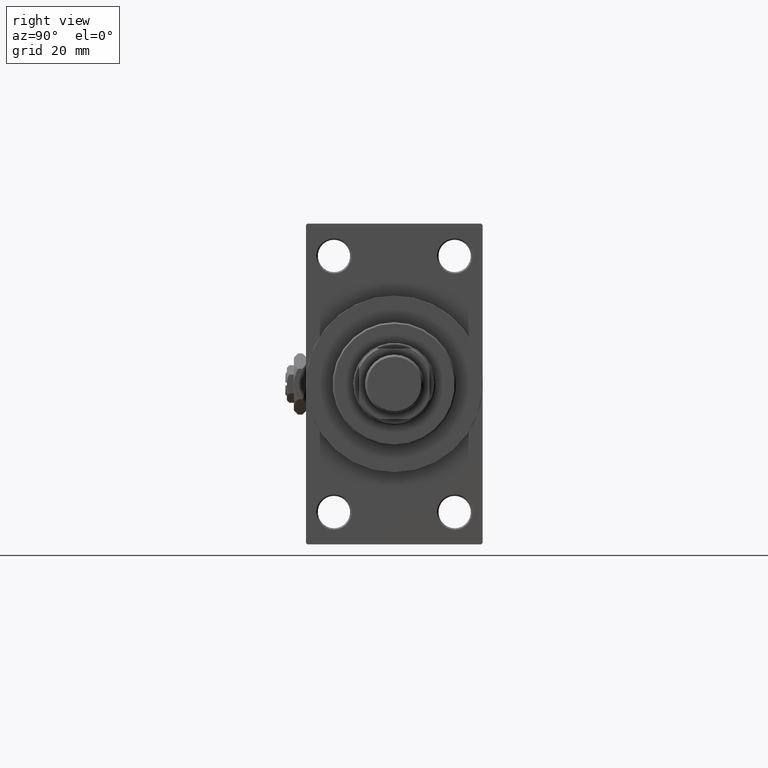
[diagram: clean part render]
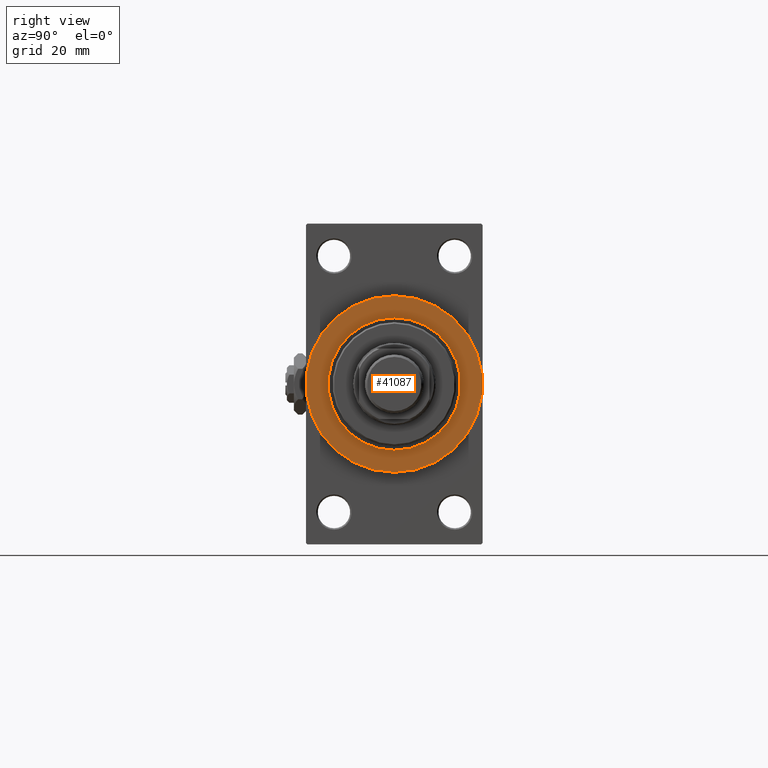
[diagram: same view with one face highlighted and labeled with its STEP entity id]
A machine part, right view. The second image highlights one B-rep face of the part: STEP entity #41087.
In plain terms, the highlighted planar face has unit normal (1, 0, 0).
Its self-contained STEP definition (entity closure, byte-faithful):
#407 = DIRECTION ( 'NONE',  ( 0.000000000000000000, 0.000000000000000000, -1.000000000000000000 ) ) ;
#518 = VERTEX_POINT ( 'NONE', #5337 ) ;
#679 = CIRCLE ( 'NONE', #49690, 30.00000000000000000 ) ;
#2275 = ORIENTED_EDGE ( 'NONE', *, *, #37459, .T. ) ;
#5337 = CARTESIAN_POINT ( 'NONE',  ( 148.0000000000000284, 3.673940397442059178E-15, -30.00000000000000000 ) ) ;
#5761 = DIRECTION ( 'NONE',  ( 1.000000000000000000, 0.000000000000000000, 0.000000000000000000 ) ) ;
#5765 = DIRECTION ( 'NONE',  ( 0.000000000000000000, 0.000000000000000000, -1.000000000000000000 ) ) ;
#7711 = DIRECTION ( 'NONE',  ( 0.000000000000000000, 0.000000000000000000, -1.000000000000000000 ) ) ;
#10197 = CIRCLE ( 'NONE', #14235, 22.50000000000000355 ) ;
#10987 = CARTESIAN_POINT ( 'NONE',  ( 148.0000000000000284, 0.000000000000000000, 0.000000000000000000 ) ) ;
#11088 = CARTESIAN_POINT ( 'NONE',  ( 148.0000000000000284, 0.000000000000000000, 0.000000000000000000 ) ) ;
#13559 = FACE_OUTER_BOUND ( 'NONE', #34023, .T. ) ;
#13746 = CARTESIAN_POINT ( 'NONE',  ( 148.0000000000000284, 0.000000000000000000, 30.00000000000000000 ) ) ;
#14235 = AXIS2_PLACEMENT_3D ( 'NONE', #16609, #5761, #39738 ) ;
#16609 = CARTESIAN_POINT ( 'NONE',  ( 148.0000000000000284, 0.000000000000000000, 0.000000000000000000 ) ) ;
#16861 = CARTESIAN_POINT ( 'NONE',  ( 148.0000000000000284, 0.000000000000000000, 0.000000000000000000 ) ) ;
#19652 = DIRECTION ( 'NONE',  ( 0.000000000000000000, 0.000000000000000000, -1.000000000000000000 ) ) ;
#20651 = VERTEX_POINT ( 'NONE', #36605 ) ;
#22295 = VERTEX_POINT ( 'NONE', #13746 ) ;
#26850 = CARTESIAN_POINT ( 'NONE',  ( 148.0000000000000284, 2.755455298081545172E-15, 22.50000000000000355 ) ) ;
#27323 = CARTESIAN_POINT ( 'NONE',  ( 148.0000000000000284, 0.000000000000000000, 0.000000000000000000 ) ) ;
#27590 = ORIENTED_EDGE ( 'NONE', *, *, #42005, .T. ) ;
#27924 = AXIS2_PLACEMENT_3D ( 'NONE', #16861, #29400, #5765 ) ;
#29400 = DIRECTION ( 'NONE',  ( 1.000000000000000000, 0.000000000000000000, 0.000000000000000000 ) ) ;
#30465 = DIRECTION ( 'NONE',  ( 1.000000000000000000, 0.000000000000000000, 0.000000000000000000 ) ) ;
#34023 = EDGE_LOOP ( 'NONE', ( #27590, #2275 ) ) ;
#34264 = CIRCLE ( 'NONE', #37452, 30.00000000000000000 ) ;
#36605 = CARTESIAN_POINT ( 'NONE',  ( 148.0000000000000284, 0.000000000000000000, -22.50000000000000355 ) ) ;
#37452 = AXIS2_PLACEMENT_3D ( 'NONE', #11088, #30465, #19652 ) ;
#37459 = EDGE_CURVE ( 'NONE', #518, #22295, #34264, .T. ) ;
#39452 = AXIS2_PLACEMENT_3D ( 'NONE', #10987, #41692, #7711 ) ;
#39738 = DIRECTION ( 'NONE',  ( 0.000000000000000000, 0.000000000000000000, -1.000000000000000000 ) ) ;
#39957 = EDGE_CURVE ( 'NONE', #20651, #46695, #10197, .T. ) ;
#39995 = ORIENTED_EDGE ( 'NONE', *, *, #47565, .F. ) ;
#40234 = PLANE ( 'NONE',  #27924 ) ;
#41051 = CIRCLE ( 'NONE', #39452, 22.50000000000000355 ) ;
#41087 = ADVANCED_FACE ( 'NONE', ( #43765, #13559 ), #40234, .T. ) ;
#41692 = DIRECTION ( 'NONE',  ( 1.000000000000000000, 0.000000000000000000, 0.000000000000000000 ) ) ;
#42005 = EDGE_CURVE ( 'NONE', #22295, #518, #679, .T. ) ;
#42933 = DIRECTION ( 'NONE',  ( 1.000000000000000000, 0.000000000000000000, 0.000000000000000000 ) ) ;
#43765 = FACE_BOUND ( 'NONE', #46591, .T. ) ;
#46591 = EDGE_LOOP ( 'NONE', ( #47341, #39995 ) ) ;
#46695 = VERTEX_POINT ( 'NONE', #26850 ) ;
#47341 = ORIENTED_EDGE ( 'NONE', *, *, #39957, .F. ) ;
#47565 = EDGE_CURVE ( 'NONE', #46695, #20651, #41051, .T. ) ;
#49690 = AXIS2_PLACEMENT_3D ( 'NONE', #27323, #42933, #407 ) ;